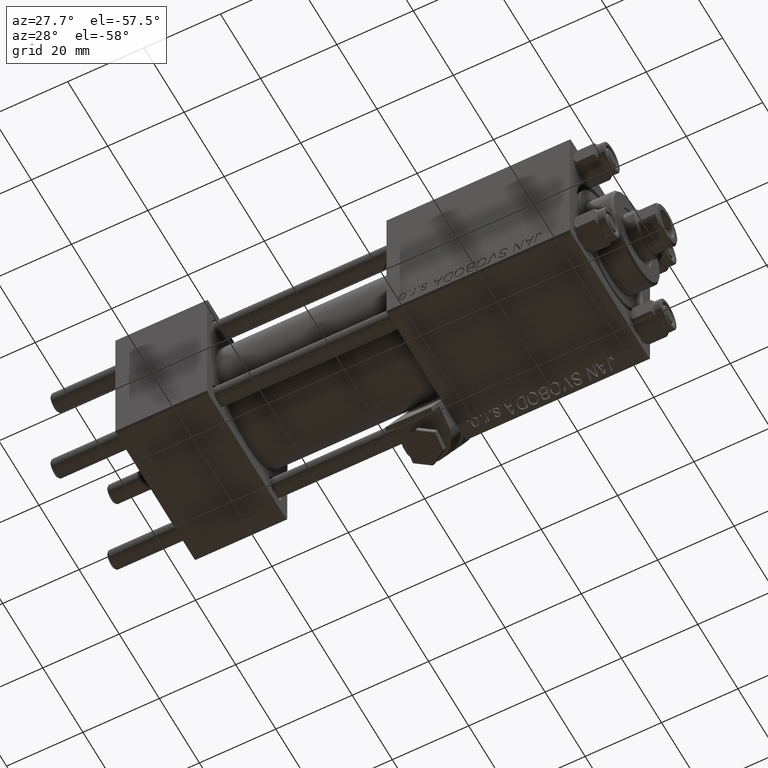
[diagram: clean part render]
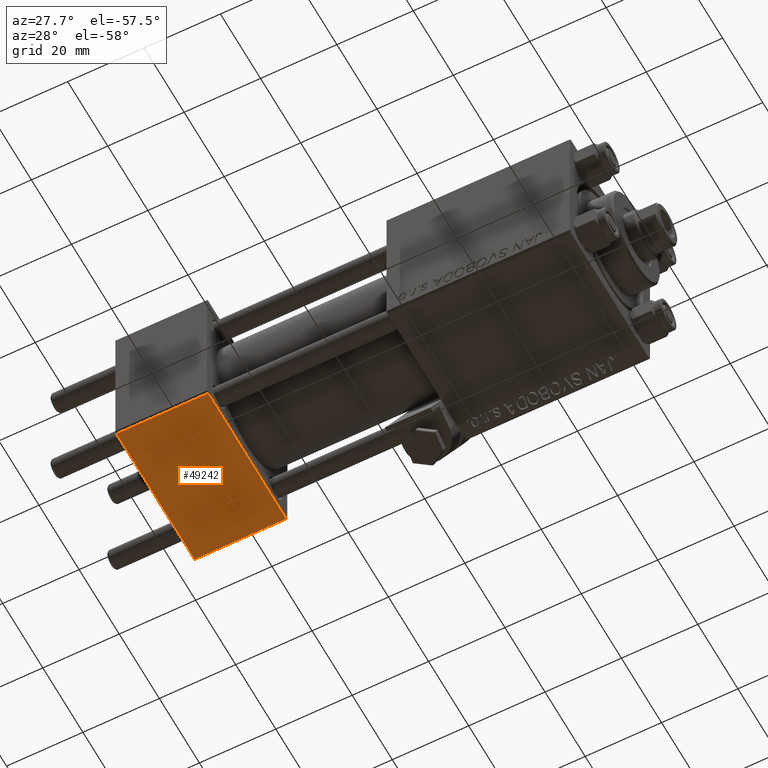
[diagram: same view with one face highlighted and labeled with its STEP entity id]
A machine part, auxiliary view. The second image highlights one B-rep face of the part: STEP entity #49242.
In plain terms, the highlighted planar face has unit normal (0, -0, -1).
Its self-contained STEP definition (entity closure, byte-faithful):
#1110 = ORIENTED_EDGE ( 'NONE', *, *, #29452, .T. ) ;
#1698 = CARTESIAN_POINT ( 'NONE',  ( 24.00000000000000000, 19.50000000000000711, -20.00000000000000711 ) ) ;
#3850 = LINE ( 'NONE', #23128, #26329 ) ;
#5622 = CARTESIAN_POINT ( 'NONE',  ( 24.00000000000000000, -19.50000000000000711, -20.00000000000000000 ) ) ;
#7419 = VECTOR ( 'NONE', #28171, 1000.000000000000000 ) ;
#8695 = ORIENTED_EDGE ( 'NONE', *, *, #21381, .T. ) ;
#8909 = FACE_OUTER_BOUND ( 'NONE', #41873, .T. ) ;
#11620 = VERTEX_POINT ( 'NONE', #5622 ) ;
#13037 = DIRECTION ( 'NONE',  ( 0.000000000000000000, -1.000000000000000000, 1.734723475976807094E-16 ) ) ;
#13631 = VERTEX_POINT ( 'NONE', #16412 ) ;
#16412 = CARTESIAN_POINT ( 'NONE',  ( 24.00000000000000000, 19.50000000000000711, -20.00000000000000711 ) ) ;
#16630 = PLANE ( 'NONE',  #41633 ) ;
#17647 = LINE ( 'NONE', #33277, #21438 ) ;
#18227 = EDGE_CURVE ( 'NONE', #25137, #13631, #48226, .T. ) ;
#21319 = EDGE_CURVE ( 'NONE', #25137, #43572, #3850, .T. ) ;
#21381 = EDGE_CURVE ( 'NONE', #11620, #43572, #42147, .T. ) ;
#21438 = VECTOR ( 'NONE', #13037, 1000.000000000000000 ) ;
#23128 = CARTESIAN_POINT ( 'NONE',  ( 0.000000000000000000, 20.00000000000000000, -20.00000000000000711 ) ) ;
#25137 = VERTEX_POINT ( 'NONE', #35285 ) ;
#26329 = VECTOR ( 'NONE', #47016, 1000.000000000000000 ) ;
#28171 = DIRECTION ( 'NONE',  ( 1.000000000000000000, 0.000000000000000000, 0.000000000000000000 ) ) ;
#28420 = CARTESIAN_POINT ( 'NONE',  ( 24.00000000000000000, 20.00000000000000000, -20.00000000000000711 ) ) ;
#29452 = EDGE_CURVE ( 'NONE', #13631, #11620, #17647, .T. ) ;
#33277 = CARTESIAN_POINT ( 'NONE',  ( 24.00000000000000000, 20.00000000000000000, -20.00000000000000711 ) ) ;
#33845 = CARTESIAN_POINT ( 'NONE',  ( 0.000000000000000000, -19.50000000000000711, -20.00000000000000000 ) ) ;
#34923 = DIRECTION ( 'NONE',  ( -1.000000000000000000, 0.000000000000000000, 0.000000000000000000 ) ) ;
#35285 = CARTESIAN_POINT ( 'NONE',  ( 0.000000000000000000, 19.50000000000000711, -20.00000000000000711 ) ) ;
#36026 = ORIENTED_EDGE ( 'NONE', *, *, #21319, .F. ) ;
#40243 = DIRECTION ( 'NONE',  ( 0.000000000000000000, 1.000000000000000000, -1.734723475976806848E-16 ) ) ;
#40463 = ORIENTED_EDGE ( 'NONE', *, *, #18227, .T. ) ;
#41101 = VECTOR ( 'NONE', #34923, 1000.000000000000000 ) ;
#41633 = AXIS2_PLACEMENT_3D ( 'NONE', #28420, #44871, #40243 ) ;
#41873 = EDGE_LOOP ( 'NONE', ( #36026, #40463, #1110, #8695 ) ) ;
#42147 = LINE ( 'NONE', #46261, #41101 ) ;
#43572 = VERTEX_POINT ( 'NONE', #33845 ) ;
#44871 = DIRECTION ( 'NONE',  ( 0.000000000000000000, -1.734723475976806848E-16, -1.000000000000000000 ) ) ;
#46261 = CARTESIAN_POINT ( 'NONE',  ( 0.000000000000000000, -19.50000000000000711, -20.00000000000000000 ) ) ;
#47016 = DIRECTION ( 'NONE',  ( 0.000000000000000000, -1.000000000000000000, 1.734723475976807094E-16 ) ) ;
#48226 = LINE ( 'NONE', #1698, #7419 ) ;
#49242 = ADVANCED_FACE ( 'NONE', ( #8909 ), #16630, .T. ) ;